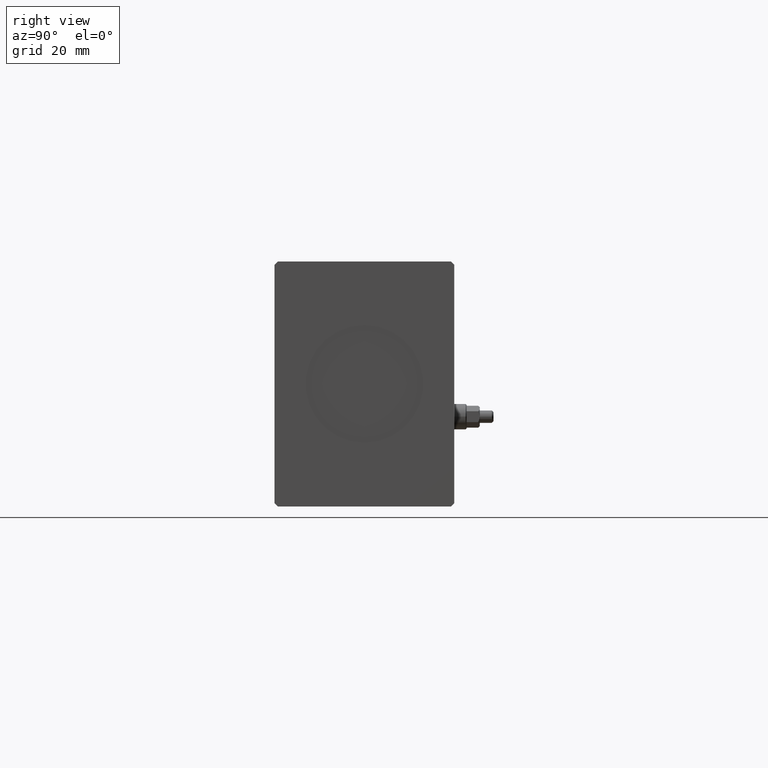
[diagram: clean part render]
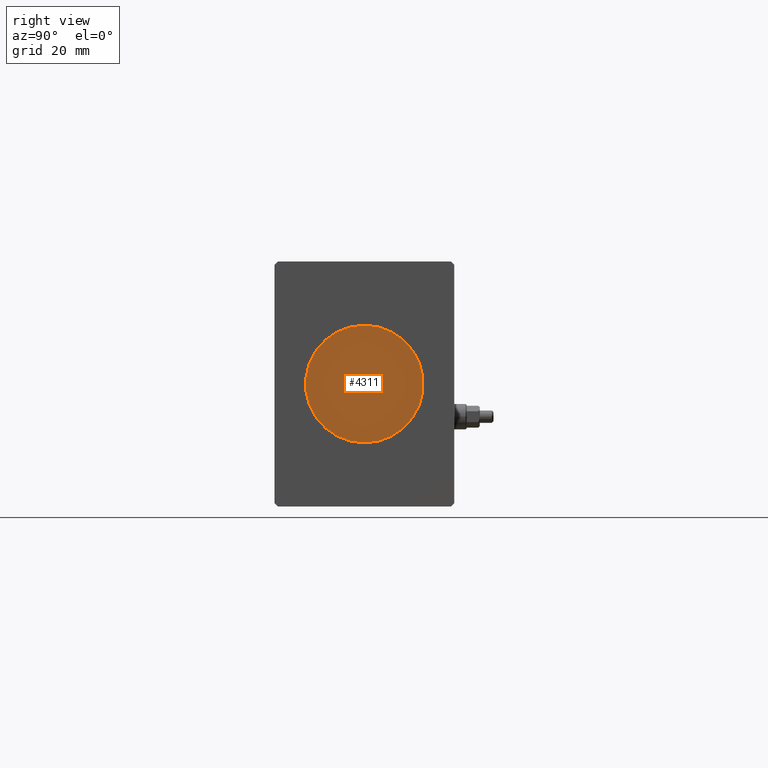
[diagram: same view with one face highlighted and labeled with its STEP entity id]
A machine part, right view. The second image highlights one B-rep face of the part: STEP entity #4311.
In plain terms, the highlighted planar face has unit normal (1, 0, 0).
Its self-contained STEP definition (entity closure, byte-faithful):
#647 = DIRECTION ( 'NONE',  ( 1.000000000000000000, 0.000000000000000000, 0.000000000000000000 ) ) ;
#756 = CIRCLE ( 'NONE', #29687, 18.00000000000000000 ) ;
#3054 = CARTESIAN_POINT ( 'NONE',  ( 174.7999999999999829, 0.000000000000000000, -18.00000000000000000 ) ) ;
#4306 = CARTESIAN_POINT ( 'NONE',  ( 174.7999999999999829, 2.204364238465235428E-15, 18.00000000000000000 ) ) ;
#4311 = ADVANCED_FACE ( 'NONE', ( #33441 ), #13395, .T. ) ;
#7965 = CARTESIAN_POINT ( 'NONE',  ( 174.7999999999999829, 0.000000000000000000, 0.000000000000000000 ) ) ;
#13395 = PLANE ( 'NONE',  #35514 ) ;
#14365 = ORIENTED_EDGE ( 'NONE', *, *, #24105, .T. ) ;
#16200 = DIRECTION ( 'NONE',  ( 0.000000000000000000, 0.000000000000000000, -1.000000000000000000 ) ) ;
#17033 = CARTESIAN_POINT ( 'NONE',  ( 174.7999999999999829, 0.000000000000000000, 0.000000000000000000 ) ) ;
#21347 = DIRECTION ( 'NONE',  ( 1.000000000000000000, 0.000000000000000000, 0.000000000000000000 ) ) ;
#24105 = EDGE_CURVE ( 'NONE', #42637, #25443, #35422, .T. ) ;
#25443 = VERTEX_POINT ( 'NONE', #4306 ) ;
#28740 = DIRECTION ( 'NONE',  ( 1.000000000000000000, 0.000000000000000000, 0.000000000000000000 ) ) ;
#29687 = AXIS2_PLACEMENT_3D ( 'NONE', #32612, #28740, #16200 ) ;
#32612 = CARTESIAN_POINT ( 'NONE',  ( 174.7999999999999829, 0.000000000000000000, 0.000000000000000000 ) ) ;
#32781 = ORIENTED_EDGE ( 'NONE', *, *, #41467, .T. ) ;
#33340 = EDGE_LOOP ( 'NONE', ( #14365, #32781 ) ) ;
#33441 = FACE_OUTER_BOUND ( 'NONE', #33340, .T. ) ;
#34713 = DIRECTION ( 'NONE',  ( 0.000000000000000000, 0.000000000000000000, -1.000000000000000000 ) ) ;
#35422 = CIRCLE ( 'NONE', #38162, 18.00000000000000000 ) ;
#35514 = AXIS2_PLACEMENT_3D ( 'NONE', #17033, #647, #39695 ) ;
#38162 = AXIS2_PLACEMENT_3D ( 'NONE', #7965, #21347, #34713 ) ;
#39695 = DIRECTION ( 'NONE',  ( 0.000000000000000000, 0.000000000000000000, -1.000000000000000000 ) ) ;
#41467 = EDGE_CURVE ( 'NONE', #25443, #42637, #756, .T. ) ;
#42637 = VERTEX_POINT ( 'NONE', #3054 ) ;